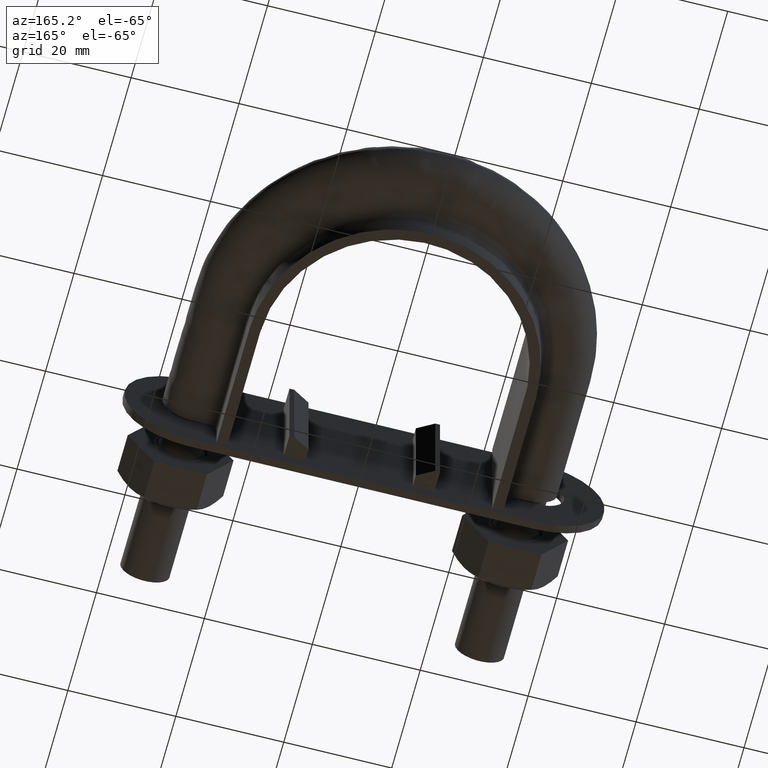
[diagram: clean part render]
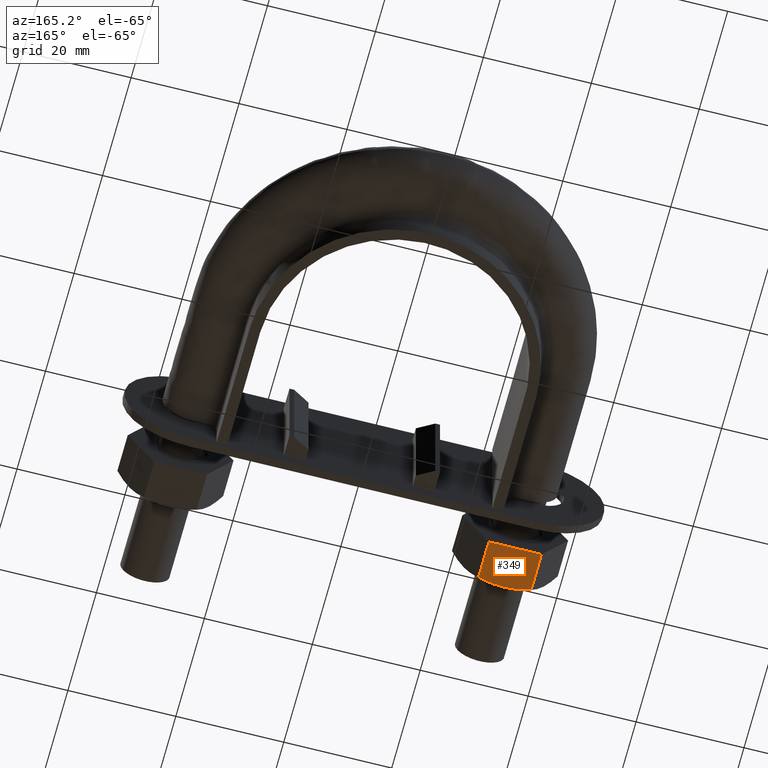
[diagram: same view with one face highlighted and labeled with its STEP entity id]
A machine part, auxiliary view. The second image highlights one B-rep face of the part: STEP entity #349.
In plain terms, the highlighted planar face has unit normal (0, -0, 1).
Its self-contained STEP definition (entity closure, byte-faithful):
#349 = ADVANCED_FACE( '', ( #568 ), #569, .F. );
#568 = FACE_OUTER_BOUND( '', #1646, .T. );
#569 = PLANE( '', #1647 );
#1646 = EDGE_LOOP( '', ( #2301, #2302, #2303, #2304, #2305 ) );
#1647 = AXIS2_PLACEMENT_3D( '', #2306, #2307, #2308 );
#2301 = ORIENTED_EDGE( '', *, *, #2697, .F. );
#2302 = ORIENTED_EDGE( '', *, *, #2684, .F. );
#2303 = ORIENTED_EDGE( '', *, *, #2689, .F. );
#2304 = ORIENTED_EDGE( '', *, *, #2672, .F. );
#2305 = ORIENTED_EDGE( '', *, *, #2694, .F. );
#2306 = CARTESIAN_POINT( '', ( -26.0925227118178, 25.0000000000000, -8.49999999995891 ) );
#2307 = DIRECTION( '', ( 2.54307136838312E-027, -3.06151519454328E-016, 1.00000000000000 ) );
#2308 = DIRECTION( '', ( 1.00000000000000, 8.30657764794306E-012, 7.17464813734306E-043 ) );
#2672 = EDGE_CURVE( '', #3013, #3015, #3016, .T. );
#2684 = EDGE_CURVE( '', #3034, #3029, #3036, .T. );
#2689 = EDGE_CURVE( '', #3015, #3034, #3041, .T. );
#2694 = EDGE_CURVE( '', #3046, #3013, #3048, .F. );
#2697 = EDGE_CURVE( '', #3029, #3046, #3051, .T. );
#3013 = VERTEX_POINT( '', #3743 );
#3015 = VERTEX_POINT( '', #3745 );
#3016 = LINE( '', #3746, #3747 );
#3029 = VERTEX_POINT( '', #3768 );
#3034 = VERTEX_POINT( '', #3778 );
#3036 = B_SPLINE_CURVE_WITH_KNOTS( '', 3, ( #3780, #3781, #3782, #3783, #3784, #3785 ), .UNSPECIFIED., .F., .F., ( 4, 2, 4 ), ( 0.000000000000000, 0.00246745482902257, 0.00493490965804515 ), .UNSPECIFIED. );
#3041 = LINE( '', #3792, #3793 );
#3046 = VERTEX_POINT( '', #3805 );
#3048 = LINE( '', #3807, #3808 );
#3051 = B_SPLINE_CURVE_WITH_KNOTS( '', 3, ( #3821, #3822, #3823, #3824, #3825, #3826 ), .UNSPECIFIED., .F., .F., ( 4, 2, 4 ), ( 0.000000000000000, 0.00246745482903893, 0.00493490965807786 ), .UNSPECIFIED. );
#3743 = CARTESIAN_POINT( '', ( -26.1225006406255, 25.0000000000000, -8.49999999995891 ) );
#3745 = CARTESIAN_POINT( '', ( -35.8774993593745, 25.0000000000000, -8.49999999995891 ) );
#3746 = CARTESIAN_POINT( '', ( -35.8999999999293, 25.0000000000000, -8.49999999995891 ) );
#3747 = VECTOR( '', #4211, 1000.00000000000 );
#3768 = CARTESIAN_POINT( '', ( -30.9999999999647, 17.0000000000012, -8.49999999997945 ) );
#3778 = CARTESIAN_POINT( '', ( -35.8774993593087, 17.7505553499288, -8.49999999995891 ) );
#3780 = CARTESIAN_POINT( '', ( -35.8774993592498, 17.7505553498859, -8.49999999999859 ) );
#3781 = CARTESIAN_POINT( '', ( -35.0805717066274, 17.5215585493079, -8.49999999999859 ) );
#3782 = CARTESIAN_POINT( '', ( -34.2774431756130, 17.3328582843394, -8.49999999995891 ) );
#3783 = CARTESIAN_POINT( '', ( -32.6533062476440, 17.0716504305024, -8.49999999995891 ) );
#3784 = CARTESIAN_POINT( '', ( -31.8321659501119, 16.9999999999733, -8.49999999995891 ) );
#3785 = CARTESIAN_POINT( '', ( -30.9999999999261, 16.9999999999775, -8.49999999995891 ) );
#3792 = CARTESIAN_POINT( '', ( -35.8774993593745, 25.0000000000000, -8.49999999995891 ) );
#3793 = VECTOR( '', #4241, 1000.00000000000 );
#3805 = CARTESIAN_POINT( '', ( -26.1225006406261, 17.7505553499476, -8.49999999995891 ) );
#3807 = CARTESIAN_POINT( '', ( -26.1225006406255, 25.0000000000000, -8.49999999995891 ) );
#3808 = VECTOR( '', #4247, 1000.00000000000 );
#3821 = CARTESIAN_POINT( '', ( -30.9999999999294, 16.9999999999660, -8.49999999997873 ) );
#3822 = CARTESIAN_POINT( '', ( -30.1678340497374, 16.9999999999700, -8.49999999997873 ) );
#3823 = CARTESIAN_POINT( '', ( -29.3466937522436, 17.0716504305148, -8.49999999995891 ) );
#3824 = CARTESIAN_POINT( '', ( -27.7225568242658, 17.3328582843646, -8.49999999995891 ) );
#3825 = CARTESIAN_POINT( '', ( -26.9194282932520, 17.5215585493633, -8.49999999995891 ) );
#3826 = CARTESIAN_POINT( '', ( -26.1225006406266, 17.7505553499474, -8.49999999995891 ) );
#4211 = DIRECTION( '', ( -1.00000000000000, 2.44921270764475E-016, 2.54314635140231E-027 ) );
#4241 = DIRECTION( '', ( -2.44921270764475E-016, -1.00000000000000, -3.06151588455594E-016 ) );
#4247 = DIRECTION( '', ( -2.44921270764475E-016, -1.00000000000000, -3.06151588455594E-016 ) );